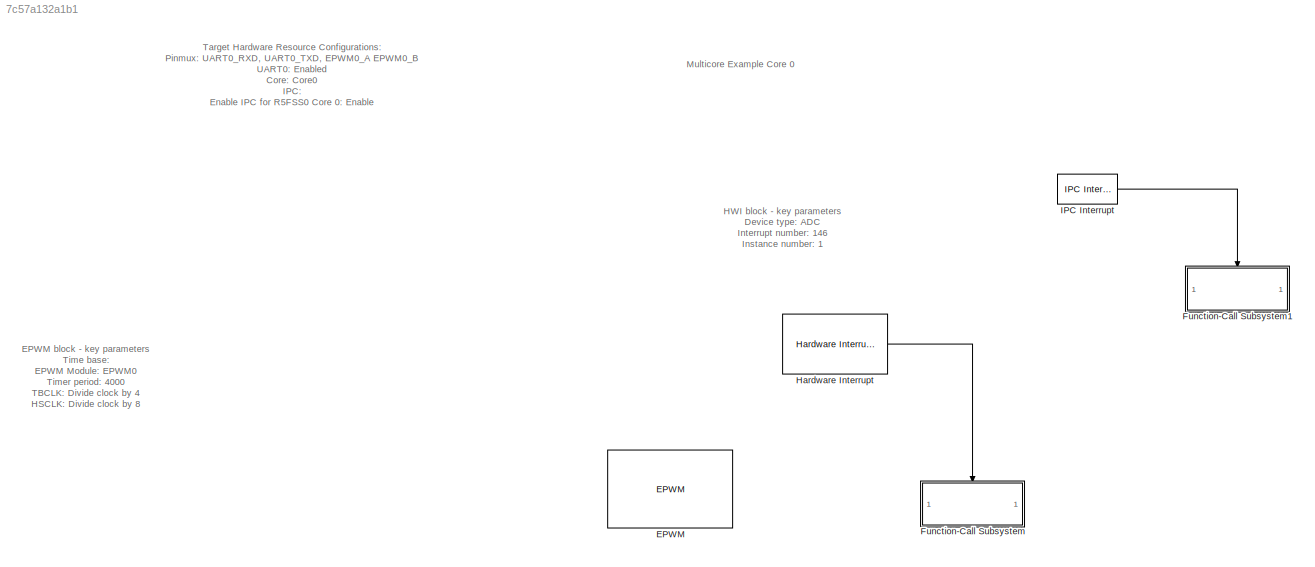
MODEL slx_7c57a132a1b1
KIND model
CONFIG AbsTol = auto
CONFIG EnableMultiTasking = off
CONFIG FixedStep = auto
CONFIG MaxStep = auto
CONFIG MinStep = auto
CONFIG RelTol = 1e-3
CONFIG SampleTimeConstraint = Unconstrained
CONFIG SolverName = FixedStepAuto
CONFIG StartTime = 0.0
CONFIG StopTime = 10.0
BLOCK [Reference] EPWM  REF=peripheral_library_blocks_am263x/EPWM
  SourceBlock = peripheral_library_blocks_am263x/EPWM
  SourceType = EPWM_AM263X
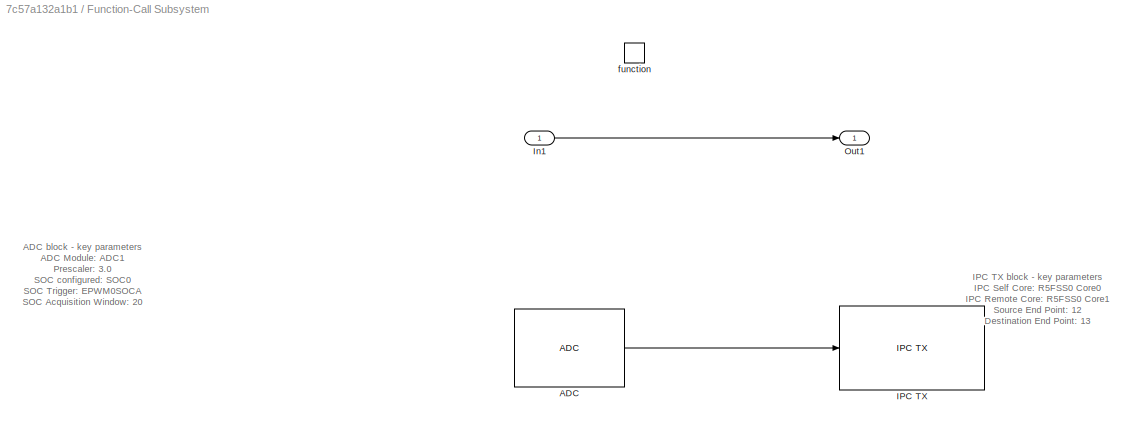
BLOCK [SubSystem] Function-Call Subsystem
  TreatAsAtomicUnit = on
BLOCK [Reference] Function-Call Subsystem/ADC  REF=peripheral_library_blocks_am263x/ADC
  SourceBlock = peripheral_library_blocks_am263x/ADC
  SourceType = ADC_AM263X
BLOCK [Reference] Function-Call Subsystem/IPC TX  REF=peripheral_library_blocks_am263x/IPC TX
  SourceBlock = peripheral_library_blocks_am263x/IPC TX
  SourceType = IPC_TX_AM263X
BLOCK [Inport] Function-Call Subsystem/In1
BLOCK [Outport] Function-Call Subsystem/Out1
BLOCK [TriggerPort] Function-Call Subsystem/function
  StatesWhenEnabling = held
  TriggerType = function-call
  VariantControl = (inherit)
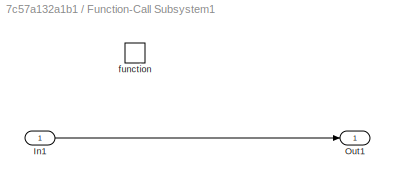
BLOCK [SubSystem] Function-Call Subsystem1
  TreatAsAtomicUnit = on
BLOCK [Inport] Function-Call Subsystem1/In1
BLOCK [Outport] Function-Call Subsystem1/Out1
BLOCK [TriggerPort] Function-Call Subsystem1/function
  StatesWhenEnabling = held
  TriggerType = function-call
  VariantControl = (inherit)
BLOCK [Reference] Hardware Interrupt  REF=HWI_lib/Hardware Interrupt
  SourceBlock = HWI_lib/Hardware Interrupt
  SourceProductName = Embedded Coder Support Package for AM263x - HWI Block
BLOCK [Reference] IPC Interrupt  REF=IPC_HWI_lib/IPC Interrupt
  SourceBlock = IPC_HWI_lib/IPC Interrupt
ANNOTATION (root): EPWM block - key parameters Time base: EPWM Module: EPWM0 Timer period: 4000 TBCLK: Divide clock by 4 HSCLK: Divide clock by 8 Counter mode: Up-count Counter compare: CMPA Value: 1000 CMPB Value: 0 CMPC Value: 0 CMPD Value: 0 Event Trigger: Enable ADC SOCA: True Start of conversion for module A event selection: TBCTR equal CMPA Number of event from start of conversion A to be generated: 1 event ge...<+17ch>
ANNOTATION (root): Multicore Example Core 0
ANNOTATION (root): Target Hardware Resource Configurations: Pinmux: UART0_RXD, UART0_TXD, EPWM0_A EPWM0_B UART0: Enabled Core: Core0 IPC: Enable IPC for R5FSS0 Core 0: Enable Number of Remote Cores Enabled: 1 Enable Remote Core: R5FSS0 CORE1: Enable RP Message Number of Buffers: 8 RP Message Buffers Size(bytes): 128
ANNOTATION (root): HWI block - key parameters Device type: ADC Interrupt number: 146 Instance number: 1
ANNOTATION Function-Call Subsystem: ADC block - key parameters ADC Module: ADC1 Prescaler: 3.0 SOC configured: SOC0 SOC Trigger: EPWM0SOCA SOC Acquisition Window: 20 SOC0 is configurred to trigger ADC Interrupt Number 1 Data Type: uint32 Conversion Channels: Channel 0
ANNOTATION Function-Call Subsystem: IPC TX block - key parameters IPC Self Core: R5FSS0 Core0 IPC Remote Core: R5FSS0 Core1 Source End Point: 12 Destination End Point: 13
LINE Function-Call Subsystem/ADC:1 -> Function-Call Subsystem/IPC TX:1
LINE Function-Call Subsystem/In1:1 -> Function-Call Subsystem/Out1:1
LINE Function-Call Subsystem1/In1:1 -> Function-Call Subsystem1/Out1:1
LINE Hardware Interrupt:1 -> Function-Call Subsystem:trigger
LINE IPC Interrupt:1 -> Function-Call Subsystem1:trigger
